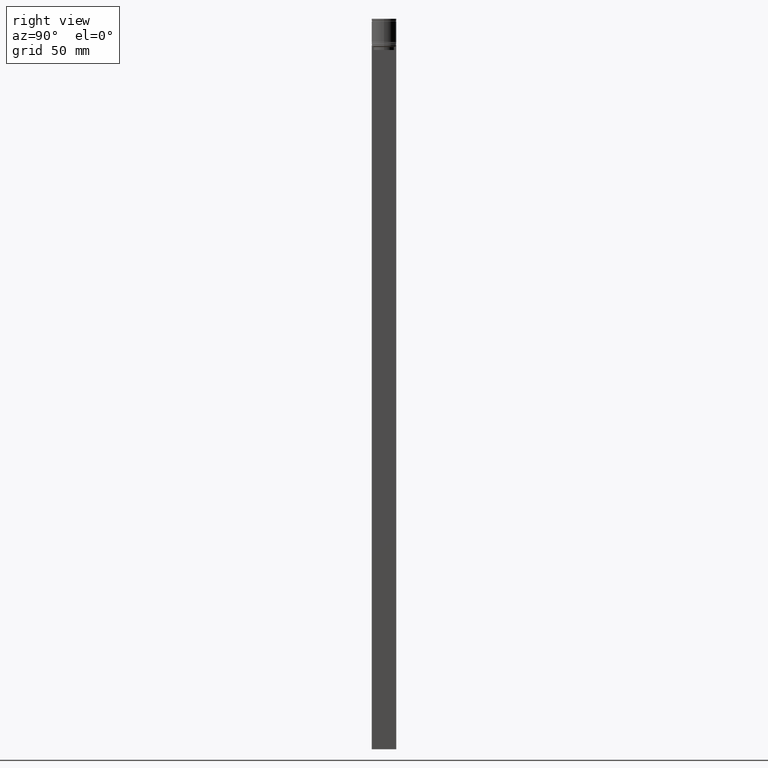
[diagram: clean part render]
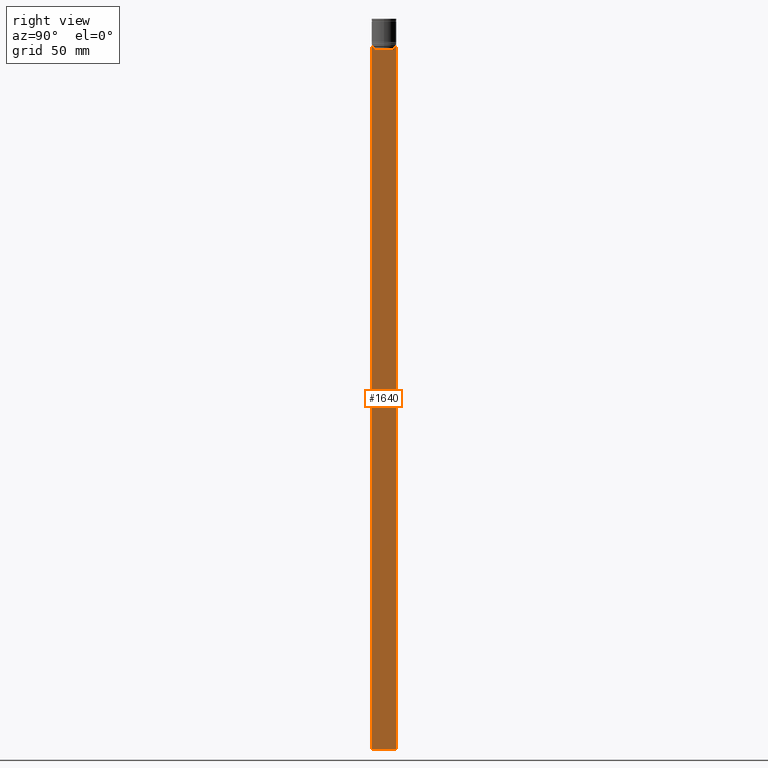
[diagram: same view with one face highlighted and labeled with its STEP entity id]
A machine part, right view. The second image highlights one B-rep face of the part: STEP entity #1640.
In plain terms, the highlighted planar face has unit normal (-1, 0, 0).
Its self-contained STEP definition (entity closure, byte-faithful):
#30 = LINE ( 'NONE', #323, #536 ) ;
#77 = CARTESIAN_POINT ( 'NONE',  ( 0.5000000000000000000, 9.999999999999998224, -22.50000000000000000 ) ) ;
#102 = VECTOR ( 'NONE', #1593, 1000.000000000000000 ) ;
#104 = CARTESIAN_POINT ( 'NONE',  ( 0.5000000000000000000, -10.00000000000000178, -22.50000000000000000 ) ) ;
#115 = EDGE_CURVE ( 'NONE', #926, #1457, #997, .T. ) ;
#149 = EDGE_CURVE ( 'NONE', #177, #926, #1843, .T. ) ;
#161 = CARTESIAN_POINT ( 'NONE',  ( 0.5000000000000000000, -10.00000000000000178, -2.475015605499213844 ) ) ;
#177 = VERTEX_POINT ( 'NONE', #1685 ) ;
#209 = CARTESIAN_POINT ( 'NONE',  ( 0.5000000000000000000, -9.887365675446622149, -22.50000000000000000 ) ) ;
#279 = CARTESIAN_POINT ( 'NONE',  ( 0.5000000000000000000, 8.385105843100610912, -23.00000000000000000 ) ) ;
#281 = DIRECTION ( 'NONE',  ( 0.000000000000000000, -1.000000000000000000, 0.000000000000000000 ) ) ;
#303 = CARTESIAN_POINT ( 'NONE',  ( 0.5000000000000000000, -8.385105843100610912, -23.00000000000000000 ) ) ;
#317 = ORIENTED_EDGE ( 'NONE', *, *, #1534, .T. ) ;
#323 = CARTESIAN_POINT ( 'NONE',  ( 0.5000000000000000000, -8.385105843100610912, 0.000000000000000000 ) ) ;
#343 = CARTESIAN_POINT ( 'NONE',  ( 0.5000000000000000000, 8.400000000000000355, -25.50000000000000000 ) ) ;
#354 = EDGE_CURVE ( 'NONE', #804, #1866, #30, .T. ) ;
#385 = DIRECTION ( 'NONE',  ( 0.000000000000000000, 0.000000000000000000, -1.000000000000000000 ) ) ;
#389 = ORIENTED_EDGE ( 'NONE', *, *, #750, .T. ) ;
#393 = DIRECTION ( 'NONE',  ( 0.000000000000000000, -1.000000000000000000, 0.000000000000000000 ) ) ;
#412 = CARTESIAN_POINT ( 'NONE',  ( 0.5000000000000000000, 9.887365675446622149, -22.50000000000000000 ) ) ;
#418 = ORIENTED_EDGE ( 'NONE', *, *, #1158, .T. ) ;
#433 = CARTESIAN_POINT ( 'NONE',  ( 0.5000000000000000000, 9.999999999999998224, -594.4999999999998863 ) ) ;
#480 = AXIS2_PLACEMENT_3D ( 'NONE', #161, #1919, #1428 ) ;
#481 = DIRECTION ( 'NONE',  ( -0.000000000000000000, -0.000000000000000000, 1.000000000000000000 ) ) ;
#487 = CARTESIAN_POINT ( 'NONE',  ( 0.5000000000000000000, -8.719005764482785636, -22.66667454151159333 ) ) ;
#505 = VECTOR ( 'NONE', #1937, 1000.000000000000000 ) ;
#536 = VECTOR ( 'NONE', #481, 1000.000000000000000 ) ;
#560 = CARTESIAN_POINT ( 'NONE',  ( 0.5000000000000000000, 8.719005771582343911, -22.66667453442325453 ) ) ;
#581 = LINE ( 'NONE', #761, #713 ) ;
#590 = ORIENTED_EDGE ( 'NONE', *, *, #1642, .F. ) ;
#598 = VERTEX_POINT ( 'NONE', #615 ) ;
#600 = ORIENTED_EDGE ( 'NONE', *, *, #938, .T. ) ;
#615 = CARTESIAN_POINT ( 'NONE',  ( 0.5000000000000000000, 8.385105843100610912, -25.50000000000000000 ) ) ;
#655 = FACE_OUTER_BOUND ( 'NONE', #848, .T. ) ;
#693 = CARTESIAN_POINT ( 'NONE',  ( 0.5000000000000000000, -10.00000000000000178, -2.475015605499213844 ) ) ;
#707 = LINE ( 'NONE', #693, #1210 ) ;
#713 = VECTOR ( 'NONE', #1686, 1000.000000000000000 ) ;
#714 = VECTOR ( 'NONE', #1456, 1000.000000000000000 ) ;
#750 = EDGE_CURVE ( 'NONE', #598, #804, #1478, .T. ) ;
#761 = CARTESIAN_POINT ( 'NONE',  ( 0.5000000000000000000, -10.00000000000000178, -594.4999999999998863 ) ) ;
#804 = VERTEX_POINT ( 'NONE', #1916 ) ;
#808 = VECTOR ( 'NONE', #393, 1000.000000000000000 ) ;
#848 = EDGE_LOOP ( 'NONE', ( #317, #895, #1545, #389, #1306, #418, #2046, #970, #600, #1731, #590, #1907 ) ) ;
#865 = VERTEX_POINT ( 'NONE', #1814 ) ;
#895 = ORIENTED_EDGE ( 'NONE', *, *, #952, .T. ) ;
#918 = VECTOR ( 'NONE', #385, 1000.000000000000000 ) ;
#926 = VERTEX_POINT ( 'NONE', #209 ) ;
#931 = EDGE_CURVE ( 'NONE', #1861, #598, #1356, .T. ) ;
#938 = EDGE_CURVE ( 'NONE', #1457, #1146, #707, .T. ) ;
#952 = EDGE_CURVE ( 'NONE', #865, #1861, #1470, .T. ) ;
#970 = ORIENTED_EDGE ( 'NONE', *, *, #115, .T. ) ;
#977 = CARTESIAN_POINT ( 'NONE',  ( 0.5000000000000000000, -10.00000000000000178, -594.4999999999998863 ) ) ;
#987 = CARTESIAN_POINT ( 'NONE',  ( 0.5000000000000000000, -10.00000000000000178, -22.50000000000000000 ) ) ;
#997 = LINE ( 'NONE', #987, #1484 ) ;
#1001 = VERTEX_POINT ( 'NONE', #412 ) ;
#1007 = DIRECTION ( 'NONE',  ( 0.000000000000000000, -1.000000000000000000, 0.000000000000000000 ) ) ;
#1091 = CARTESIAN_POINT ( 'NONE',  ( 0.5000000000000000000, 9.999999999999998224, -2.475015605499213844 ) ) ;
#1146 = VERTEX_POINT ( 'NONE', #977 ) ;
#1158 = EDGE_CURVE ( 'NONE', #1866, #177, #1902, .T. ) ;
#1167 = DIRECTION ( 'NONE',  ( 0.000000000000000000, 0.000000000000000000, -1.000000000000000000 ) ) ;
#1171 = EDGE_CURVE ( 'NONE', #1934, #1001, #1438, .T. ) ;
#1210 = VECTOR ( 'NONE', #1167, 1000.000000000000000 ) ;
#1273 = PLANE ( 'NONE',  #480 ) ;
#1275 = CARTESIAN_POINT ( 'NONE',  ( 0.5000000000000000000, -8.552060194457766329, -22.83334167772666845 ) ) ;
#1306 = ORIENTED_EDGE ( 'NONE', *, *, #354, .T. ) ;
#1344 = CARTESIAN_POINT ( 'NONE',  ( 0.5000000000000000000, 8.385105843100610912, -23.00000000000000000 ) ) ;
#1356 = LINE ( 'NONE', #1984, #918 ) ;
#1428 = DIRECTION ( 'NONE',  ( 0.000000000000000000, 0.000000000000000000, 1.000000000000000000 ) ) ;
#1438 = LINE ( 'NONE', #2083, #505 ) ;
#1443 = VERTEX_POINT ( 'NONE', #433 ) ;
#1456 = DIRECTION ( 'NONE',  ( 0.000000000000000000, 0.000000000000000000, -1.000000000000000000 ) ) ;
#1457 = VERTEX_POINT ( 'NONE', #1888 ) ;
#1462 = EDGE_CURVE ( 'NONE', #1146, #1443, #581, .T. ) ;
#1470 = B_SPLINE_CURVE_WITH_KNOTS ( 'NONE', 3,
 ( #1502, #560, #1689, #1344 ),
 .UNSPECIFIED., .F., .F.,
 ( 4, 4 ),
 ( 0.01511546479386905242, 0.01582316445439077568 ),
 .UNSPECIFIED. ) ;
#1478 = LINE ( 'NONE', #343, #102 ) ;
#1484 = VECTOR ( 'NONE', #1007, 1000.000000000000000 ) ;
#1502 = CARTESIAN_POINT ( 'NONE',  ( 0.5000000000000000000, 8.885943956609226646, -22.50000000000000000 ) ) ;
#1534 = EDGE_CURVE ( 'NONE', #1001, #865, #1733, .T. ) ;
#1545 = ORIENTED_EDGE ( 'NONE', *, *, #931, .T. ) ;
#1593 = DIRECTION ( 'NONE',  ( 0.000000000000000000, -1.000000000000000000, 0.000000000000000000 ) ) ;
#1640 = ADVANCED_FACE ( 'NONE', ( #655 ), #1273, .F. ) ;
#1642 = EDGE_CURVE ( 'NONE', #1934, #1443, #1749, .T. ) ;
#1685 = CARTESIAN_POINT ( 'NONE',  ( 0.5000000000000000000, -8.885943956609226646, -22.50000000000000000 ) ) ;
#1686 = DIRECTION ( 'NONE',  ( 0.000000000000000000, 1.000000000000000000, 0.000000000000000000 ) ) ;
#1689 = CARTESIAN_POINT ( 'NONE',  ( 0.5000000000000000000, 8.552060201981371179, -22.83334167021640582 ) ) ;
#1727 = VECTOR ( 'NONE', #281, 1000.000000000000000 ) ;
#1731 = ORIENTED_EDGE ( 'NONE', *, *, #1462, .T. ) ;
#1733 = LINE ( 'NONE', #104, #1727 ) ;
#1749 = LINE ( 'NONE', #1091, #714 ) ;
#1779 = CARTESIAN_POINT ( 'NONE',  ( 0.5000000000000000000, -8.885943956609226646, -22.50000000000000000 ) ) ;
#1814 = CARTESIAN_POINT ( 'NONE',  ( 0.5000000000000000000, 8.885943956609226646, -22.50000000000000000 ) ) ;
#1843 = LINE ( 'NONE', #2071, #808 ) ;
#1861 = VERTEX_POINT ( 'NONE', #279 ) ;
#1865 = CARTESIAN_POINT ( 'NONE',  ( 0.5000000000000000000, -8.385105843100610912, -23.00000000000000000 ) ) ;
#1866 = VERTEX_POINT ( 'NONE', #1865 ) ;
#1888 = CARTESIAN_POINT ( 'NONE',  ( 0.5000000000000000000, -10.00000000000000178, -22.50000000000000000 ) ) ;
#1902 = B_SPLINE_CURVE_WITH_KNOTS ( 'NONE', 3,
 ( #303, #1275, #487, #1779 ),
 .UNSPECIFIED., .F., .F.,
 ( 4, 4 ),
 ( 0.03898465126933124691, 0.03969388910599652709 ),
 .UNSPECIFIED. ) ;
#1907 = ORIENTED_EDGE ( 'NONE', *, *, #1171, .T. ) ;
#1916 = CARTESIAN_POINT ( 'NONE',  ( 0.5000000000000000000, -8.385105843100610912, -25.50000000000000000 ) ) ;
#1919 = DIRECTION ( 'NONE',  ( -1.000000000000000000, 0.000000000000000000, 0.000000000000000000 ) ) ;
#1934 = VERTEX_POINT ( 'NONE', #77 ) ;
#1937 = DIRECTION ( 'NONE',  ( 0.000000000000000000, -1.000000000000000000, 0.000000000000000000 ) ) ;
#1984 = CARTESIAN_POINT ( 'NONE',  ( 0.5000000000000000000, 8.385105843100610912, 0.000000000000000000 ) ) ;
#2046 = ORIENTED_EDGE ( 'NONE', *, *, #149, .T. ) ;
#2071 = CARTESIAN_POINT ( 'NONE',  ( 0.5000000000000000000, -10.00000000000000178, -22.50000000000000000 ) ) ;
#2083 = CARTESIAN_POINT ( 'NONE',  ( 0.5000000000000000000, -10.00000000000000178, -22.50000000000000000 ) ) ;